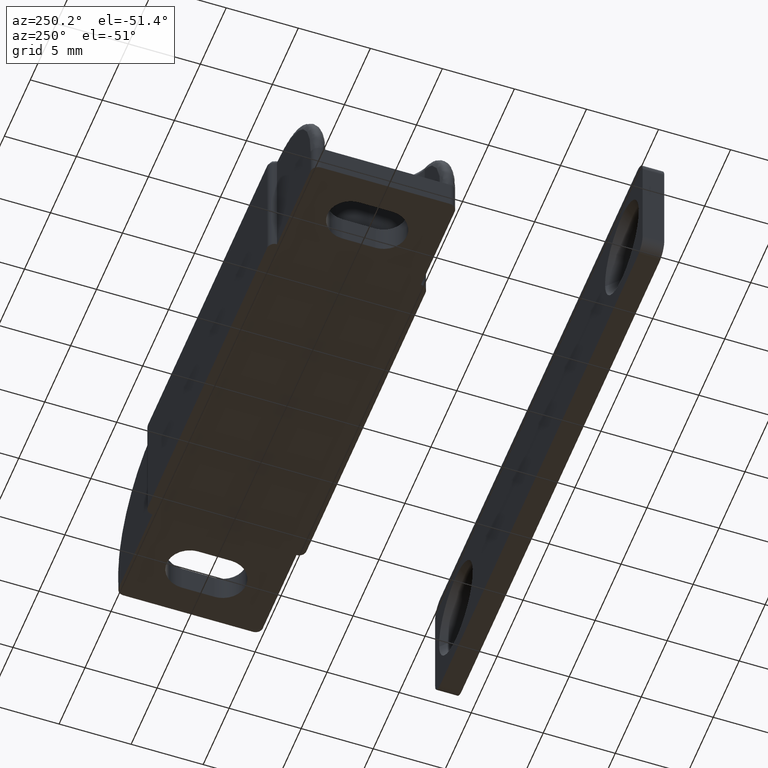
[diagram: clean part render]
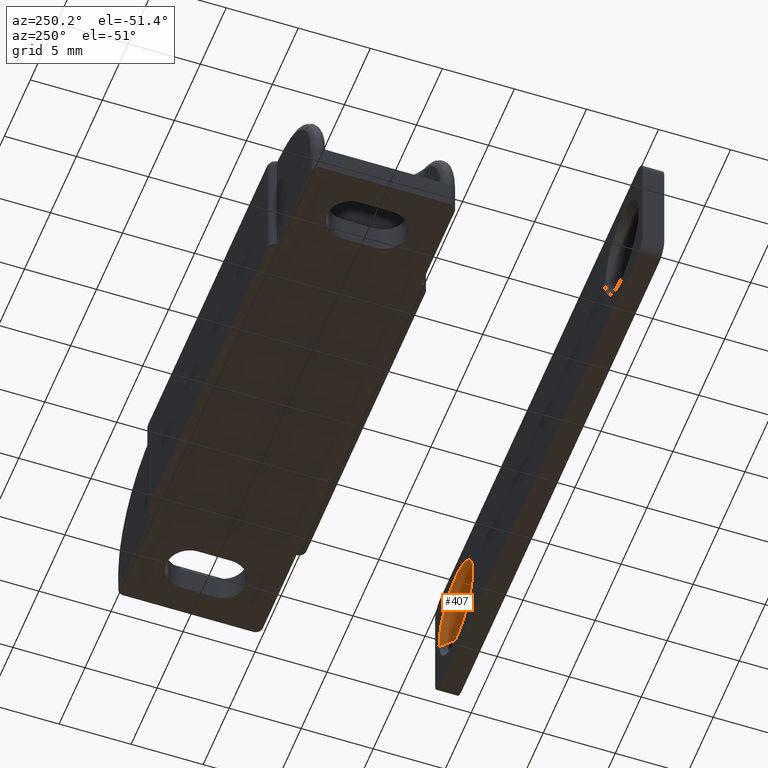
[diagram: same view with one face highlighted and labeled with its STEP entity id]
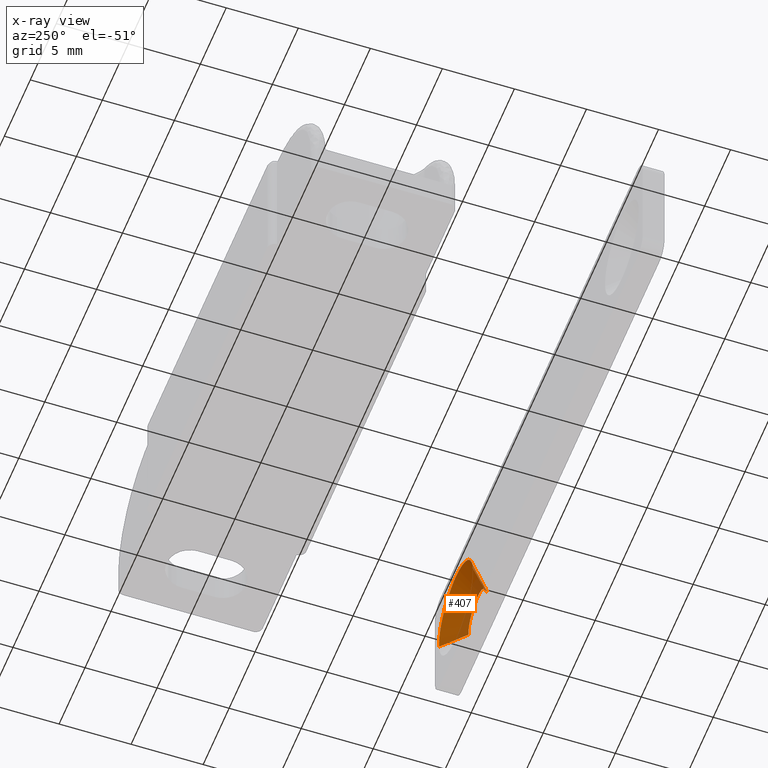
[diagram: x-ray of the same camera — body ghosted, the highlighted face saturated]
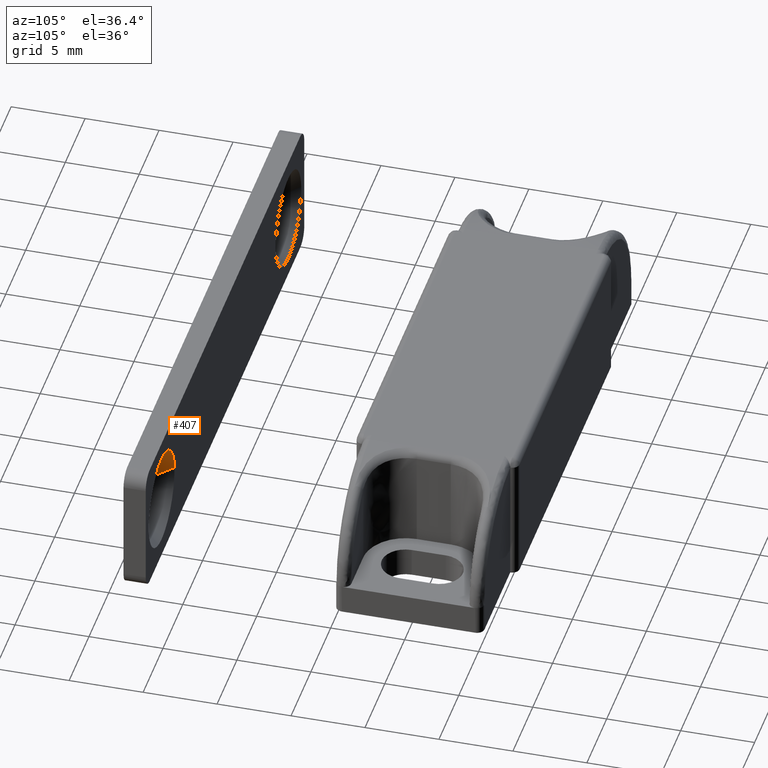
[diagram: same view with one face highlighted and labeled with its STEP entity id]
A machine part, auxiliary view. The second image highlights one B-rep face of the part: STEP entity #407.
The next image is the same camera in x-ray: the body ghosted, the highlighted face saturated — about 23% of this face is hidden behind the body in this view.
A second angle (auxiliary view) of the same face is appended — the face is thin or edge-on in the first view.
In plain terms, the highlighted face is a freeform B-spline surface patch.
Its self-contained STEP definition (entity closure, byte-faithful):
#246=CARTESIAN_POINT('',(17.744605334042511,-18.999999999970861,4.362696582250846));
#247=VERTEX_POINT('',#246);
#261=CARTESIAN_POINT('',(19.239981334635161,-17.499999999988908,4.245007938799685));
#262=VERTEX_POINT('',#261);
#263=CARTESIAN_POINT('',(17.744605334042511,-18.999999999970861,4.362696582250846));
#264=CARTESIAN_POINT('',(19.239981334635161,-17.499999999988908,4.245007938799685));
#265=QUASI_UNIFORM_CURVE('',1,(#263,#264),.UNSPECIFIED.,.F.,.U.);
#266=EDGE_CURVE('',#247,#262,#265,.T.);
#283=CARTESIAN_POINT('',(12.760018665360940,-17.499999999988908,4.754992061200317));
#284=VERTEX_POINT('',#283);
#300=CARTESIAN_POINT('',(14.255394665953590,-18.999999999970861,4.637303417749155));
#301=VERTEX_POINT('',#300);
#302=CARTESIAN_POINT('',(14.255394665953590,-18.999999999970861,4.637303417749155));
#303=CARTESIAN_POINT('',(12.760018665360940,-17.499999999988908,4.754992061200317));
#304=QUASI_UNIFORM_CURVE('',1,(#302,#303),.UNSPECIFIED.,.F.,.U.);
#305=EDGE_CURVE('',#301,#284,#304,.T.);
#325=CARTESIAN_POINT('',(14.292779065980071,-19.037500000000009,4.634361201433936));
#326=CARTESIAN_POINT('',(14.427140267414014,-19.037500000000001,6.341582135451914));
#327=CARTESIAN_POINT('',(16.134361201431989,-19.037500000000009,6.207220934017979));
#328=CARTESIAN_POINT('',(17.841582135449972,-19.037500000000001,6.072859732584044));
#329=CARTESIAN_POINT('',(17.707220934016028,-19.037500000000009,4.365638798566065));
#330=CARTESIAN_POINT('',(12.721699655350021,-17.461562499999999,4.758007832607538));
#331=CARTESIAN_POINT('',(12.979707487957555,-17.461562499999992,8.036308177255572));
#332=CARTESIAN_POINT('',(16.258007832605589,-17.461562499999999,7.778300344648034));
#333=CARTESIAN_POINT('',(19.536308177253627,-17.461562499999992,7.520292512040498));
#334=CARTESIAN_POINT('',(19.278300344646080,-17.461562499999999,4.241992167392462));
#342=(BOUNDED_SURFACE()B_SPLINE_SURFACE(2,1,((#325,#330),(#326,#331),(#327,#332),(#328,#333),(#329,#334)),.UNSPECIFIED.,.F.,.F.,.U.)B_SPLINE_SURFACE_WITH_KNOTS((3,2,3),(2,2),(0.0,5.448461646065103,10.896923292130211),(0.0,2.228712185952360),.UNSPECIFIED.)GEOMETRIC_REPRESENTATION_ITEM()RATIONAL_B_SPLINE_SURFACE(((1.0,1.0),(0.707106781186548,0.707106781186548),(1.0,1.0),(0.707106781186548,0.707106781186548),(1.0,1.0)))REPRESENTATION_ITEM('')SURFACE());
#343=CARTESIAN_POINT('',(15.999999999998050,-19.0,6.249999999999999));
#344=VERTEX_POINT('',#343);
#345=CARTESIAN_POINT('',(17.744605334042507,-18.999999999970861,4.362696582250846));
#346=CARTESIAN_POINT('',(17.749999999998053,-18.999999999999996,4.431242312512404));
#347=CARTESIAN_POINT('',(17.749999999998050,-19.0,4.500000000000000));
#348=CARTESIAN_POINT('',(17.749999999998053,-18.999999999999996,6.249999999999999));
#349=CARTESIAN_POINT('',(15.999999999998050,-19.0,6.249999999999999));
#357=(BOUNDED_CURVE()B_SPLINE_CURVE(2,(#345,#346,#347,#348,#349),.UNSPECIFIED.,.F.,.U.)B_SPLINE_CURVE_WITH_KNOTS((3,2,3),(0.236331300588916,0.250000000000000,0.500000000000000),.UNSPECIFIED.)CURVE()GEOMETRIC_REPRESENTATION_ITEM()RATIONAL_B_SPLINE_CURVE((0.969723356080301,0.983986122529976,1.0,0.707106781186547,1.0))REPRESENTATION_ITEM(''));
#358=EDGE_CURVE('',#247,#344,#357,.T.);
#359=ORIENTED_EDGE('',*,*,#358,.T.);
#360=CARTESIAN_POINT('',(15.999999999998050,-19.0,6.249999999999999));
#361=CARTESIAN_POINT('',(14.382316640011284,-19.000000000000007,6.250000000000001));
#362=CARTESIAN_POINT('',(14.255394665953594,-18.999999999970868,4.637303417749155));
#370=(BOUNDED_CURVE()B_SPLINE_CURVE(2,(#360,#361,#362),.UNSPECIFIED.,.F.,.U.)B_SPLINE_CURVE_WITH_KNOTS((3,3),(0.500000000000000,0.736331300588914),.UNSPECIFIED.)CURVE()GEOMETRIC_REPRESENTATION_ITEM()RATIONAL_B_SPLINE_CURVE((1.0,0.723120658656573,0.969723356080299))REPRESENTATION_ITEM(''));
#371=EDGE_CURVE('',#344,#301,#370,.T.);
#372=ORIENTED_EDGE('',*,*,#371,.T.);
#373=ORIENTED_EDGE('',*,*,#305,.T.);
#374=CARTESIAN_POINT('',(15.999999999998050,-17.500000000000000,7.750000000000000));
#375=VERTEX_POINT('',#374);
#376=CARTESIAN_POINT('',(15.999999999998050,-17.500000000000000,7.750000000000000));
#377=CARTESIAN_POINT('',(12.995730902265034,-17.500000000000004,7.750000000000000));
#378=CARTESIAN_POINT('',(12.760018665360935,-17.499999999988916,4.754992061200317));
#386=(BOUNDED_CURVE()B_SPLINE_CURVE(2,(#376,#377,#378),.UNSPECIFIED.,.F.,.U.)B_SPLINE_CURVE_WITH_KNOTS((3,3),(0.500000000000000,0.736331300623884),.UNSPECIFIED.)CURVE()GEOMETRIC_REPRESENTATION_ITEM()RATIONAL_B_SPLINE_CURVE((1.0,0.723120658615603,0.969723356153278))REPRESENTATION_ITEM(''));
#387=EDGE_CURVE('',#375,#284,#386,.T.);
#388=ORIENTED_EDGE('',*,*,#387,.F.);
#389=CARTESIAN_POINT('',(19.239981334635161,-17.499999999988908,4.245007938799685));
#390=CARTESIAN_POINT('',(19.249999999998050,-17.500000000000004,4.372307152140737));
#391=CARTESIAN_POINT('',(19.249999999998050,-17.500000000000000,4.500000000000000));
#392=CARTESIAN_POINT('',(19.249999999998050,-17.500000000000000,7.750000000000001));
#393=CARTESIAN_POINT('',(15.999999999998050,-17.500000000000000,7.750000000000000));
#401=(BOUNDED_CURVE()B_SPLINE_CURVE(2,(#389,#390,#391,#392,#393),.UNSPECIFIED.,.F.,.U.)B_SPLINE_CURVE_WITH_KNOTS((3,2,3),(0.236331300623884,0.250000000000000,0.500000000000000),.UNSPECIFIED.)CURVE()GEOMETRIC_REPRESENTATION_ITEM()RATIONAL_B_SPLINE_CURVE((0.969723356153277,0.983986122570943,1.0,0.707106781186547,1.0))REPRESENTATION_ITEM(''));
#402=EDGE_CURVE('',#262,#375,#401,.T.);
#403=ORIENTED_EDGE('',*,*,#402,.F.);
#404=ORIENTED_EDGE('',*,*,#266,.F.);
#405=EDGE_LOOP('',(#359,#372,#373,#388,#403,#404));
#406=FACE_OUTER_BOUND('',#405,.T.);
#407=ADVANCED_FACE('',(#406),#342,.F.);